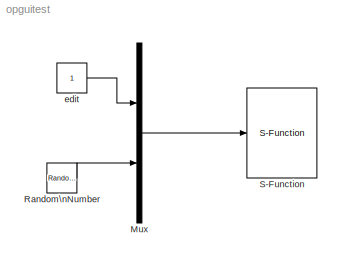
MODEL opguitest
KIND model
BLOCK [Mux] Mux
  DisplayOption = bar
  Inputs = 2
  Ports = [2, 1]
  SID = 1
BLOCK [RandomNumber] Random\nNumber
  Mean = 1
  SID = 2
  Seed = 0.1
  Variance = 0.3
BLOCK [S-Function] S-Function
  EnableBusSupport = off
  FunctionName = opgui_sf
  Parameters = 0.005
  Ports = [1]
  SFcnIsStateOwnerBlock = off
  SFunctionDeploymentMode = off
  SID = 3
BLOCK [Constant] edit
  SID = 4
LINE Mux:1 -> S-Function:1
LINE Random\nNumber:1 -> Mux:2
LINE edit:1 -> Mux:1
